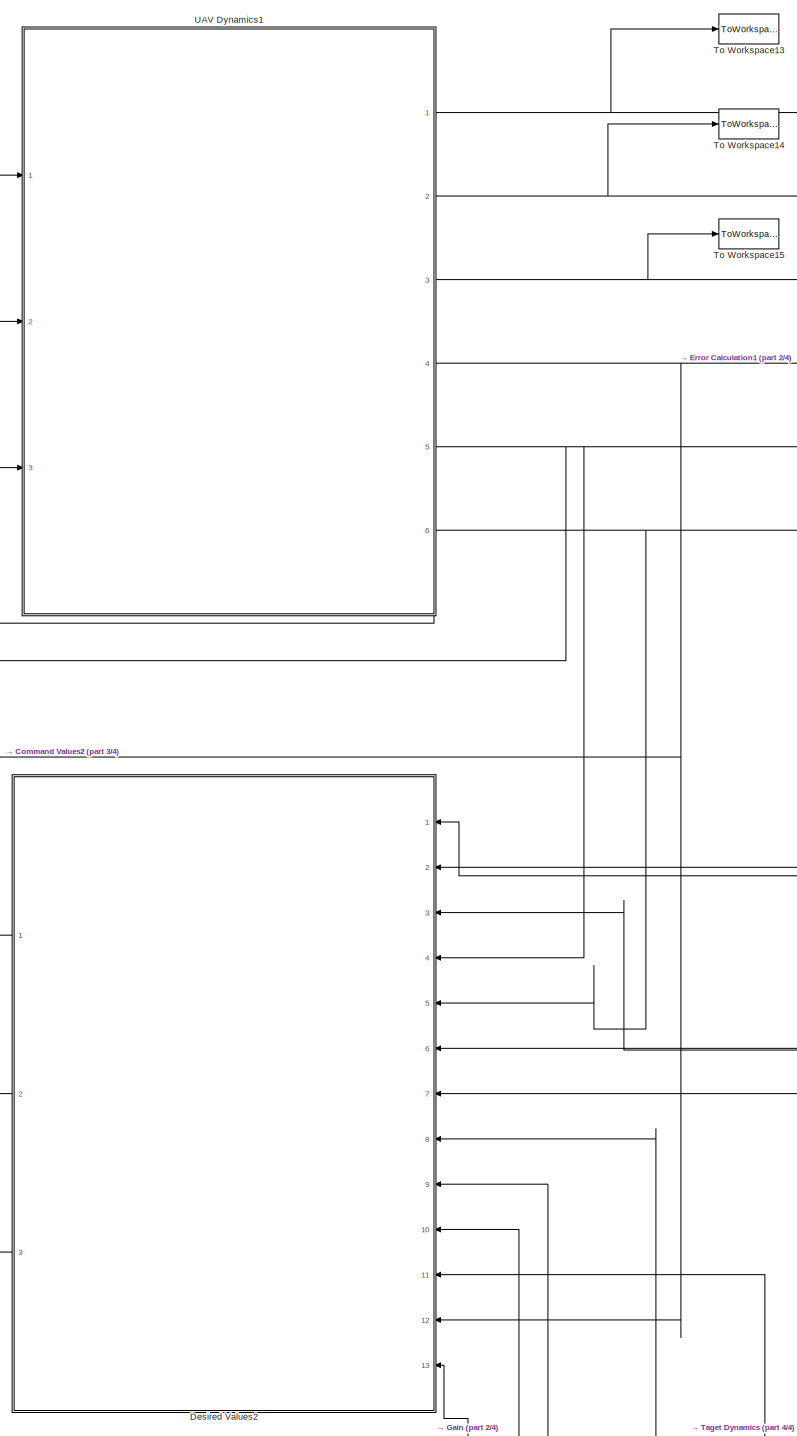
[diagram: root canvas - part 1/4, center side, full height]
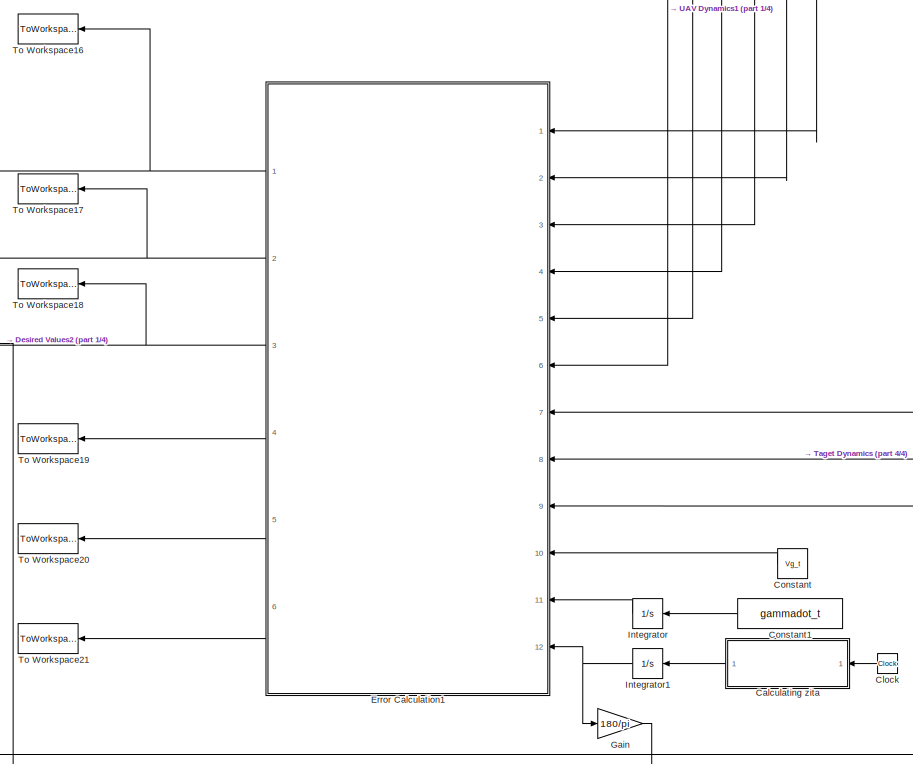
[diagram: root canvas - part 2/4, central region]
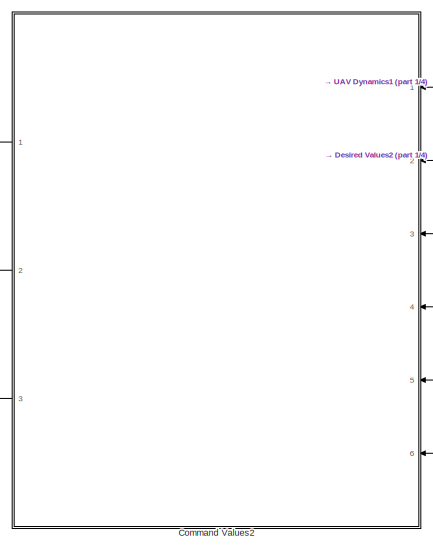
[diagram: root canvas - part 3/4, bottom left region]
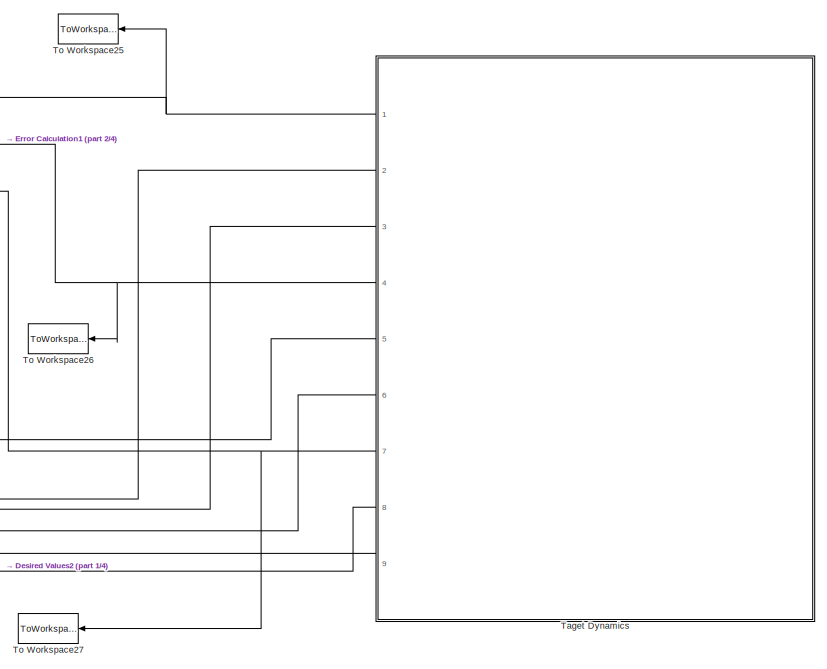
[diagram: root canvas - part 4/4, bottom right region]
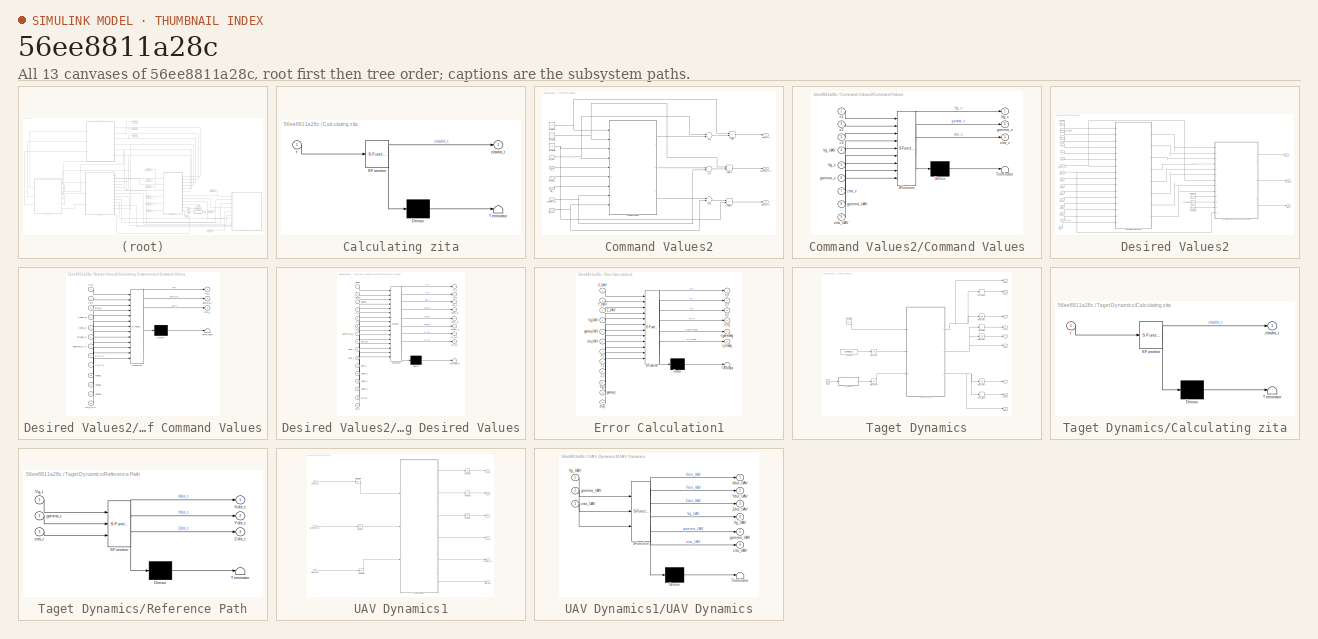
[diagram: thumbnail index - all 13 canvases of the model, root first then tree order]
MODEL slx_56ee8811a28c
KIND model
CONFIG AbsTol = auto
CONFIG EnableMultiTasking = off
CONFIG FixedStep = 0.0001
CONFIG InitFcn = Initial_Data_Case_3
CONFIG MaxStep = auto
CONFIG MinStep = auto
CONFIG RelTol = 1e-3
CONFIG SampleTimeConstraint = Unconstrained
CONFIG Solver = FixedStepAuto
CONFIG SolverName = FixedStepAuto
CONFIG StartTime = 0.0
CONFIG StopFcn = Plots_Case_3
CONFIG StopTime = 60
BLOCK [SubSystem] Calculating zita
  ErrorFcn = Stateflow.Translate.translate
  PermitHierarchicalResolution = ExplicitOnly
  Ports = [1, 1]
  RequestExecContextInheritance = off
  SFBlockType = MATLAB Function
  TreatAsAtomicUnit = on
BLOCK [Demux] Calculating zita/ Demux 
  Outputs = 1
  Ports = [1, 1]
BLOCK [S-Function] Calculating zita/ SFunction 
  EnableBusSupport = on
  FunctionName = sf_sfun
  PortCounts = [1 2]
  Ports = [1, 2]
  SFcnIsStateOwnerBlock = off
  SFunctionDeploymentMode = off
  Tag = Stateflow S-Function Project_Simulation_Case_3 3
BLOCK [Terminator] Calculating zita/ Terminator 
BLOCK [Inport] Calculating zita/t
  IconDisplay = Port number
BLOCK [Outport] Calculating zita/zitadot_t
  IconDisplay = Port number
BLOCK [Clock] Clock
BLOCK [SubSystem] Command Values2
  Ports = [6, 3]
  RequestExecContextInheritance = off
BLOCK [Sum] Command Values2/Add
  InputSameDT = off
  Inputs = -+
  OutDataTypeStr = Inherit: Inherit via internal rule
  Ports = [2, 1]
  SaturateOnIntegerOverflow = off
BLOCK [Sum] Command Values2/Add1
  InputSameDT = off
  Inputs = +-
  OutDataTypeStr = Inherit: Inherit via internal rule
  Ports = [2, 1]
  SaturateOnIntegerOverflow = off
BLOCK [Sum] Command Values2/Add2
  InputSameDT = off
  Inputs = +-
  OutDataTypeStr = Inherit: Inherit via internal rule
  Ports = [2, 1]
  SaturateOnIntegerOverflow = off
BLOCK [SubSystem] Command Values2/Command Values
  ErrorFcn = Stateflow.Translate.translate
  PermitHierarchicalResolution = ExplicitOnly
  Ports = [9, 3]
  RequestExecContextInheritance = off
  SFBlockType = MATLAB Function
  TreatAsAtomicUnit = on
BLOCK [Demux] Command Values2/Command Values/ Demux 
  Outputs = 1
  Ports = [1, 1]
BLOCK [S-Function] Command Values2/Command Values/ SFunction 
  EnableBusSupport = on
  FunctionName = sf_sfun
  PortCounts = [9 4]
  Ports = [9, 4]
  SFcnIsStateOwnerBlock = off
  SFunctionDeploymentMode = off
  Tag = Stateflow S-Function Project_Simulation_Case_3 5
BLOCK [Terminator] Command Values2/Command Values/ Terminator 
BLOCK [Inport] Command Values2/Command Values/Vg_UAV
  IconDisplay = Port number
  Port = 4
BLOCK [Outport] Command Values2/Command Values/Vg_c
  IconDisplay = Port number
BLOCK [Inport] Command Values2/Command Values/Vg_c 
  IconDisplay = Port number
  Port = 5
BLOCK [Inport] Command Values2/Command Values/c1
  IconDisplay = Port number
BLOCK [Inport] Command Values2/Command Values/c2
  IconDisplay = Port number
  Port = 2
BLOCK [Inport] Command Values2/Command Values/c3
  IconDisplay = Port number
  Port = 3
BLOCK [Inport] Command Values2/Command Values/gamma_UAV
  IconDisplay = Port number
  Port = 8
BLOCK [Outport] Command Values2/Command Values/gamma_c
  IconDisplay = Port number
  Port = 2
BLOCK [Inport] Command Values2/Command Values/gamma_c 
  IconDisplay = Port number
  Port = 6
BLOCK [Inport] Command Values2/Command Values/zita_UAV
  IconDisplay = Port number
  Port = 9
BLOCK [Outport] Command Values2/Command Values/zita_c
  IconDisplay = Port number
  Port = 3
BLOCK [Inport] Command Values2/Command Values/zita_c 
  IconDisplay = Port number
  Port = 7
BLOCK [Constant] Command Values2/Constant
  Value = c1
BLOCK [Constant] Command Values2/Constant1
  Value = c2
BLOCK [Constant] Command Values2/Constant2
  Value = c3
BLOCK [Product] Command Values2/Multiply
  InputSameDT = off
  OutDataTypeStr = Inherit: Inherit via internal rule
  Ports = [2, 1]
  RndMeth = Floor
  SaturateOnIntegerOverflow = off
BLOCK [Product] Command Values2/Multiply1
  InputSameDT = off
  OutDataTypeStr = Inherit: Inherit via internal rule
  Ports = [2, 1]
  RndMeth = Floor
  SaturateOnIntegerOverflow = off
BLOCK [Product] Command Values2/Multiply2
  InputSameDT = off
  OutDataTypeStr = Inherit: Inherit via internal rule
  Ports = [2, 1]
  RndMeth = Floor
  SaturateOnIntegerOverflow = off
BLOCK [Outport] Command Values2/Vdotg_UAV
  IconDisplay = Port number
BLOCK [Inport] Command Values2/Vg_UAV
  IconDisplay = Port number
BLOCK [Inport] Command Values2/Vg_c
  IconDisplay = Port number
  Port = 2
BLOCK [Inport] Command Values2/gamma_UAV
  IconDisplay = Port number
  Port = 3
BLOCK [Inport] Command Values2/gamma_c
  IconDisplay = Port number
  Port = 5
BLOCK [Outport] Command Values2/gammadot_UAV
  IconDisplay = Port number
  Port = 2
BLOCK [Inport] Command Values2/zita_UAV
  IconDisplay = Port number
  Port = 4
BLOCK [Inport] Command Values2/zita_c
  IconDisplay = Port number
  Port = 6
BLOCK [Outport] Command Values2/zitadot_UAV
  IconDisplay = Port number
  Port = 3
BLOCK [Constant] Constant
  Value = Vg_t
BLOCK [Constant] Constant1
  Value = gammadot_t
BLOCK [SubSystem] Desired Values2
  Ports = [13, 3]
  RequestExecContextInheritance = off
BLOCK [SubSystem] Desired Values2/Calculating Components of Command Values
  ErrorFcn = Stateflow.Translate.translate
  PermitHierarchicalResolution = ExplicitOnly
  Ports = [13, 3]
  RequestExecContextInheritance = off
  SFBlockType = MATLAB Function
  TreatAsAtomicUnit = on
BLOCK [Demux] Desired Values2/Calculating Components of Command Values/ Demux 
  Outputs = 1
  Ports = [1, 1]
BLOCK [S-Function] Desired Values2/Calculating Components of Command Values/ SFunction 
  EnableBusSupport = on
  FunctionName = sf_sfun
  PortCounts = [13 4]
  Ports = [13, 4]
  SFcnIsStateOwnerBlock = off
  SFunctionDeploymentMode = off
  Tag = Stateflow S-Function Project_Simulation_Case_3 6
BLOCK [Terminator] Desired Values2/Calculating Components of Command Values/ Terminator 
BLOCK [Inport] Desired Values2/Calculating Components of Command Values/V1_UAV
  IconDisplay = Port number
  Port = 8
BLOCK [Inport] Desired Values2/Calculating Components of Command Values/V1_d
  IconDisplay = Port number
BLOCK [Inport] Desired Values2/Calculating Components of Command Values/V2_UAV
  IconDisplay = Port number
  Port = 9
BLOCK [Inport] Desired Values2/Calculating Components of Command Values/V2_d
  IconDisplay = Port number
  Port = 2
BLOCK [Inport] Desired Values2/Calculating Components of Command Values/Vdot1_d
  IconDisplay = Port number
  Port = 4
BLOCK [Inport] Desired Values2/Calculating Components of Command Values/Vdot2_d
  IconDisplay = Port number
  Port = 5
BLOCK [Outport] Desired Values2/Calculating Components of Command Values/Vg_c
  IconDisplay = Port number
BLOCK [Inport] Desired Values2/Calculating Components of Command Values/gamma_UAV
  IconDisplay = Port number
  Port = 7
BLOCK [Outport] Desired Values2/Calculating Components of Command Values/gamma_c
  IconDisplay = Port number
  Port = 2
BLOCK [Inport] Desired Values2/Calculating Components of Command Values/landa1
  IconDisplay = Port number
  Port = 10
BLOCK [Inport] Desired Values2/Calculating Components of Command Values/landa2
  IconDisplay = Port number
  Port = 11
BLOCK [Inport] Desired Values2/Calculating Components of Command Values/landa3
  IconDisplay = Port number
  Port = 12
BLOCK [Inport] Desired Values2/Calculating Components of Command Values/zita_UAV
  IconDisplay = Port number
  Port = 13
BLOCK [Outport] Desired Values2/Calculating Components of Command Values/zita_c
  IconDisplay = Port number
  Port = 3
BLOCK [Inport] Desired Values2/Calculating Components of Command Values/zita_d
  IconDisplay = Port number
  Port = 3
BLOCK [Inport] Desired Values2/Calculating Components of Command Values/zitadot_d
  IconDisplay = Port number
  Port = 6
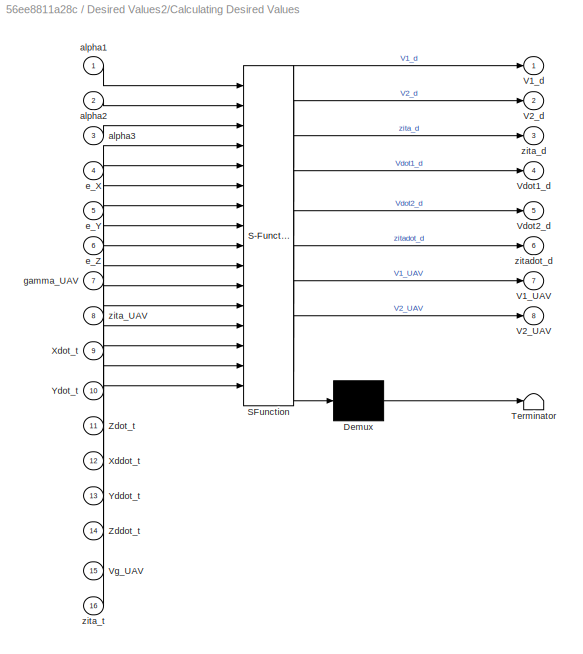
BLOCK [SubSystem] Desired Values2/Calculating Desired Values
  ErrorFcn = Stateflow.Translate.translate
  PermitHierarchicalResolution = ExplicitOnly
  Ports = [16, 8]
  RequestExecContextInheritance = off
  SFBlockType = MATLAB Function
  TreatAsAtomicUnit = on
BLOCK [Demux] Desired Values2/Calculating Desired Values/ Demux 
  Outputs = 1
  Ports = [1, 1]
BLOCK [S-Function] Desired Values2/Calculating Desired Values/ SFunction 
  EnableBusSupport = on
  FunctionName = sf_sfun
  PortCounts = [16 9]
  Ports = [16, 9]
  SFcnIsStateOwnerBlock = off
  SFunctionDeploymentMode = off
  Tag = Stateflow S-Function Project_Simulation_Case_3 7
BLOCK [Terminator] Desired Values2/Calculating Desired Values/ Terminator 
BLOCK [Outport] Desired Values2/Calculating Desired Values/V1_UAV
  IconDisplay = Port number
  Port = 7
BLOCK [Outport] Desired Values2/Calculating Desired Values/V1_d
  IconDisplay = Port number
BLOCK [Outport] Desired Values2/Calculating Desired Values/V2_UAV
  IconDisplay = Port number
  Port = 8
BLOCK [Outport] Desired Values2/Calculating Desired Values/V2_d
  IconDisplay = Port number
  Port = 2
BLOCK [Outport] Desired Values2/Calculating Desired Values/Vdot1_d
  IconDisplay = Port number
  Port = 4
BLOCK [Outport] Desired Values2/Calculating Desired Values/Vdot2_d
  IconDisplay = Port number
  Port = 5
BLOCK [Inport] Desired Values2/Calculating Desired Values/Vg_UAV
  IconDisplay = Port number
  Port = 15
BLOCK [Inport] Desired Values2/Calculating Desired Values/Xddot_t
  IconDisplay = Port number
  Port = 12
BLOCK [Inport] Desired Values2/Calculating Desired Values/Xdot_t
  IconDisplay = Port number
  Port = 9
BLOCK [Inport] Desired Values2/Calculating Desired Values/Yddot_t
  IconDisplay = Port number
  Port = 13
BLOCK [Inport] Desired Values2/Calculating Desired Values/Ydot_t
  IconDisplay = Port number
  Port = 10
BLOCK [Inport] Desired Values2/Calculating Desired Values/Zddot_t
  IconDisplay = Port number
  Port = 14
BLOCK [Inport] Desired Values2/Calculating Desired Values/Zdot_t
  IconDisplay = Port number
  Port = 11
BLOCK [Inport] Desired Values2/Calculating Desired Values/alpha1
  IconDisplay = Port number
BLOCK [Inport] Desired Values2/Calculating Desired Values/alpha2
  IconDisplay = Port number
  Port = 2
BLOCK [Inport] Desired Values2/Calculating Desired Values/alpha3
  IconDisplay = Port number
  Port = 3
BLOCK [Inport] Desired Values2/Calculating Desired Values/e_X
  IconDisplay = Port number
  Port = 4
BLOCK [Inport] Desired Values2/Calculating Desired Values/e_Y
  IconDisplay = Port number
  Port = 5
BLOCK [Inport] Desired Values2/Calculating Desired Values/e_Z
  IconDisplay = Port number
  Port = 6
BLOCK [Inport] Desired Values2/Calculating Desired Values/gamma_UAV
  IconDisplay = Port number
  Port = 7
BLOCK [Inport] Desired Values2/Calculating Desired Values/zita_UAV
  IconDisplay = Port number
  Port = 8
BLOCK [Outport] Desired Values2/Calculating Desired Values/zita_d
  IconDisplay = Port number
  Port = 3
BLOCK [Inport] Desired Values2/Calculating Desired Values/zita_t
  IconDisplay = Port number
  Port = 16
BLOCK [Outport] Desired Values2/Calculating Desired Values/zitadot_d
  IconDisplay = Port number
  Port = 6
BLOCK [Constant] Desired Values2/Constant
  Value = alpha1
BLOCK [Constant] Desired Values2/Constant1
  Value = alpha2
BLOCK [Constant] Desired Values2/Constant2
  Value = alpha3
BLOCK [Constant] Desired Values2/Constant3
  Value = landa1
BLOCK [Constant] Desired Values2/Constant4
  Value = landa2
BLOCK [Constant] Desired Values2/Constant5
  Value = landa3
BLOCK [Inport] Desired Values2/Vg_UAV
  IconDisplay = Port number
  Port = 12
BLOCK [Outport] Desired Values2/Vg_c
  IconDisplay = Port number
BLOCK [Inport] Desired Values2/Xddot_t
  IconDisplay = Port number
  Port = 9
BLOCK [Inport] Desired Values2/Xdot_t
  IconDisplay = Port number
  Port = 6
BLOCK [Inport] Desired Values2/Yddot_t
  IconDisplay = Port number
  Port = 10
BLOCK [Inport] Desired Values2/Ydot_t
  IconDisplay = Port number
  Port = 7
BLOCK [Inport] Desired Values2/Zddot_t
  IconDisplay = Port number
  Port = 11
BLOCK [Inport] Desired Values2/Zdot_t
  IconDisplay = Port number
  Port = 8
BLOCK [Inport] Desired Values2/e_X
  IconDisplay = Port number
BLOCK [Inport] Desired Values2/e_Y
  IconDisplay = Port number
  Port = 2
BLOCK [Inport] Desired Values2/e_Z
  IconDisplay = Port number
  Port = 3
BLOCK [Inport] Desired Values2/gamma_UAV
  IconDisplay = Port number
  Port = 4
BLOCK [Outport] Desired Values2/gamma_c
  IconDisplay = Port number
  Port = 2
BLOCK [Inport] Desired Values2/zita_UAV
  IconDisplay = Port number
  Port = 5
BLOCK [Outport] Desired Values2/zita_c
  IconDisplay = Port number
  Port = 3
BLOCK [Inport] Desired Values2/zita_t
  IconDisplay = Port number
  Port = 13
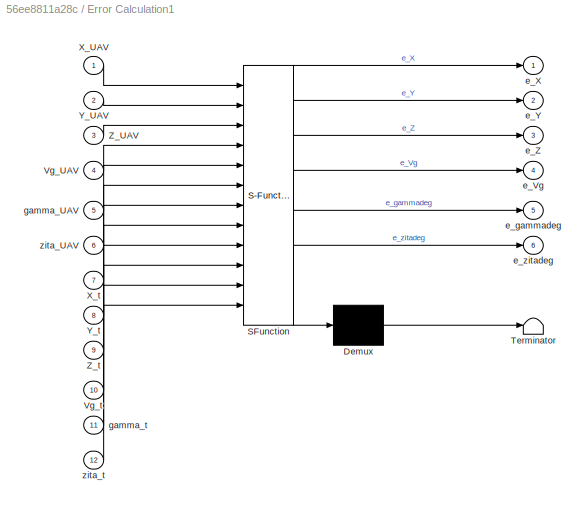
BLOCK [SubSystem] Error Calculation1
  ErrorFcn = Stateflow.Translate.translate
  PermitHierarchicalResolution = ExplicitOnly
  Ports = [12, 6]
  RequestExecContextInheritance = off
  SFBlockType = MATLAB Function
  TreatAsAtomicUnit = on
BLOCK [Demux] Error Calculation1/ Demux 
  Outputs = 1
  Ports = [1, 1]
BLOCK [S-Function] Error Calculation1/ SFunction 
  EnableBusSupport = on
  FunctionName = sf_sfun
  PortCounts = [12 7]
  Ports = [12, 7]
  SFcnIsStateOwnerBlock = off
  SFunctionDeploymentMode = off
  Tag = Stateflow S-Function Project_Simulation_Case_3 13
BLOCK [Terminator] Error Calculation1/ Terminator 
BLOCK [Inport] Error Calculation1/Vg_UAV
  IconDisplay = Port number
  Port = 4
BLOCK [Inport] Error Calculation1/Vg_t
  IconDisplay = Port number
  Port = 10
BLOCK [Inport] Error Calculation1/X_UAV
  IconDisplay = Port number
BLOCK [Inport] Error Calculation1/X_t
  IconDisplay = Port number
  Port = 7
BLOCK [Inport] Error Calculation1/Y_UAV
  IconDisplay = Port number
  Port = 2
BLOCK [Inport] Error Calculation1/Y_t
  IconDisplay = Port number
  Port = 8
BLOCK [Inport] Error Calculation1/Z_UAV
  IconDisplay = Port number
  Port = 3
BLOCK [Inport] Error Calculation1/Z_t
  IconDisplay = Port number
  Port = 9
BLOCK [Outport] Error Calculation1/e_Vg
  IconDisplay = Port number
  Port = 4
BLOCK [Outport] Error Calculation1/e_X
  IconDisplay = Port number
BLOCK [Outport] Error Calculation1/e_Y
  IconDisplay = Port number
  Port = 2
BLOCK [Outport] Error Calculation1/e_Z
  IconDisplay = Port number
  Port = 3
BLOCK [Outport] Error Calculation1/e_gammadeg
  IconDisplay = Port number
  Port = 5
BLOCK [Outport] Error Calculation1/e_zitadeg
  IconDisplay = Port number
  Port = 6
BLOCK [Inport] Error Calculation1/gamma_UAV
  IconDisplay = Port number
  Port = 5
BLOCK [Inport] Error Calculation1/gamma_t
  IconDisplay = Port number
  Port = 11
BLOCK [Inport] Error Calculation1/zita_UAV
  IconDisplay = Port number
  Port = 6
BLOCK [Inport] Error Calculation1/zita_t
  IconDisplay = Port number
  Port = 12
BLOCK [Gain] Gain
  Gain = 180/pi
  OutDataTypeStr = Inherit: Inherit via internal rule
  ParamDataTypeStr = Inherit: Inherit via internal rule
  SaturateOnIntegerOverflow = off
BLOCK [Integrator] Integrator
  InitialCondition = 45*pi/180
  Ports = [1, 1]
BLOCK [Integrator] Integrator1
  InitialCondition = 0*pi/180
  Ports = [1, 1]
BLOCK [SubSystem] Taget Dynamics
  Ports = [0, 9]
  RequestExecContextInheritance = off
BLOCK [SubSystem] Taget Dynamics/Calculating zita
  ErrorFcn = Stateflow.Translate.translate
  PermitHierarchicalResolution = ExplicitOnly
  Ports = [1, 1]
  RequestExecContextInheritance = off
  SFBlockType = MATLAB Function
  TreatAsAtomicUnit = on
BLOCK [Demux] Taget Dynamics/Calculating zita/ Demux 
  Outputs = 1
  Ports = [1, 1]
BLOCK [S-Function] Taget Dynamics/Calculating zita/ SFunction 
  EnableBusSupport = on
  FunctionName = sf_sfun
  PortCounts = [1 2]
  Ports = [1, 2]
  SFcnIsStateOwnerBlock = off
  SFunctionDeploymentMode = off
  Tag = Stateflow S-Function Project_Simulation_Case_3 2
BLOCK [Terminator] Taget Dynamics/Calculating zita/ Terminator 
BLOCK [Inport] Taget Dynamics/Calculating zita/t
  IconDisplay = Port number
BLOCK [Outport] Taget Dynamics/Calculating zita/zitadot_t
  IconDisplay = Port number
BLOCK [Clock] Taget Dynamics/Clock
BLOCK [Constant] Taget Dynamics/Constant
  Value = Vg_t
BLOCK [Constant] Taget Dynamics/Constant1
  Value = gammadot_t
BLOCK [Derivative] Taget Dynamics/Derivative
BLOCK [Derivative] Taget Dynamics/Derivative1
BLOCK [Derivative] Taget Dynamics/Derivative2
BLOCK [Integrator] Taget Dynamics/Integrator
  InitialCondition = 45*pi/180
  Ports = [1, 1]
BLOCK [Integrator] Taget Dynamics/Integrator1
  InitialCondition = 100
  Ports = [1, 1]
BLOCK [Integrator] Taget Dynamics/Integrator2
  InitialCondition = 100
  Ports = [1, 1]
BLOCK [Integrator] Taget Dynamics/Integrator3
  InitialCondition = 100
  Ports = [1, 1]
BLOCK [Integrator] Taget Dynamics/Integrator4
  InitialCondition = 0*pi/180
  Ports = [1, 1]
BLOCK [SubSystem] Taget Dynamics/Reference Path
  ErrorFcn = Stateflow.Translate.translate
  PermitHierarchicalResolution = ExplicitOnly
  Ports = [3, 3]
  RequestExecContextInheritance = off
  SFBlockType = MATLAB Function
  TreatAsAtomicUnit = on
BLOCK [Demux] Taget Dynamics/Reference Path/ Demux 
  Outputs = 1
  Ports = [1, 1]
BLOCK [S-Function] Taget Dynamics/Reference Path/ SFunction 
  EnableBusSupport = on
  FunctionName = sf_sfun
  PortCounts = [3 4]
  Ports = [3, 4]
  SFcnIsStateOwnerBlock = off
  SFunctionDeploymentMode = off
  Tag = Stateflow S-Function Project_Simulation_Case_3 14
BLOCK [Terminator] Taget Dynamics/Reference Path/ Terminator 
BLOCK [Inport] Taget Dynamics/Reference Path/Vg_t
  IconDisplay = Port number
BLOCK [Outport] Taget Dynamics/Reference Path/Xdot_t
  IconDisplay = Port number
BLOCK [Outport] Taget Dynamics/Reference Path/Ydot_t
  IconDisplay = Port number
  Port = 2
BLOCK [Outport] Taget Dynamics/Reference Path/Zdot_t
  IconDisplay = Port number
  Port = 3
BLOCK [Inport] Taget Dynamics/Reference Path/gamma_t
  IconDisplay = Port number
  Port = 2
BLOCK [Inport] Taget Dynamics/Reference Path/zita_t
  IconDisplay = Port number
  Port = 3
BLOCK [Outport] Taget Dynamics/X_t
  IconDisplay = Port number
BLOCK [Outport] Taget Dynamics/Xddot_t
  IconDisplay = Port number
  Port = 2
BLOCK [Outport] Taget Dynamics/Xdot_t
  IconDisplay = Port number
  Port = 3
BLOCK [Outport] Taget Dynamics/Y_t
  IconDisplay = Port number
  Port = 4
BLOCK [Outport] Taget Dynamics/Yddot_t
  IconDisplay = Port number
  Port = 5
BLOCK [Outport] Taget Dynamics/Ydot_t
  IconDisplay = Port number
  Port = 6
BLOCK [Outport] Taget Dynamics/Z_t
  IconDisplay = Port number
  Port = 7
BLOCK [Outport] Taget Dynamics/Zddot_t
  IconDisplay = Port number
  Port = 8
BLOCK [Outport] Taget Dynamics/Zdot_t
  IconDisplay = Port number
  Port = 9
BLOCK [ToWorkspace] To Workspace13
  FixptAsFi = on
  MaxDataPoints = inf
  Ports = [1]
  SampleTime = -1
  Save2DSignal = 3-D array (concatenate along third dimension)
  SaveFormat = Timeseries
  VariableName = X_UAV
BLOCK [ToWorkspace] To Workspace14
  FixptAsFi = on
  MaxDataPoints = inf
  Ports = [1]
  SampleTime = -1
  Save2DSignal = 3-D array (concatenate along third dimension)
  SaveFormat = Timeseries
  VariableName = Y_UAV
BLOCK [ToWorkspace] To Workspace15
  FixptAsFi = on
  MaxDataPoints = inf
  Ports = [1]
  SampleTime = -1
  Save2DSignal = 3-D array (concatenate along third dimension)
  SaveFormat = Timeseries
  VariableName = Z_UAV
BLOCK [ToWorkspace] To Workspace16
  FixptAsFi = on
  MaxDataPoints = inf
  Ports = [1]
  SampleTime = -1
  Save2DSignal = 3-D array (concatenate along third dimension)
  SaveFormat = Timeseries
  VariableName = e_X
BLOCK [ToWorkspace] To Workspace17
  FixptAsFi = on
  MaxDataPoints = inf
  Ports = [1]
  SampleTime = -1
  Save2DSignal = 3-D array (concatenate along third dimension)
  SaveFormat = Timeseries
  VariableName = e_Y
BLOCK [ToWorkspace] To Workspace18
  FixptAsFi = on
  MaxDataPoints = inf
  Ports = [1]
  SampleTime = -1
  Save2DSignal = 3-D array (concatenate along third dimension)
  SaveFormat = Timeseries
  VariableName = e_Z
BLOCK [ToWorkspace] To Workspace19
  FixptAsFi = on
  MaxDataPoints = inf
  Ports = [1]
  SampleTime = -1
  Save2DSignal = 3-D array (concatenate along third dimension)
  SaveFormat = Timeseries
  VariableName = e_Vg
BLOCK [ToWorkspace] To Workspace20
  FixptAsFi = on
  MaxDataPoints = inf
  Ports = [1]
  SampleTime = -1
  Save2DSignal = 3-D array (concatenate along third dimension)
  SaveFormat = Timeseries
  VariableName = e_gammadeg
BLOCK [ToWorkspace] To Workspace21
  FixptAsFi = on
  MaxDataPoints = inf
  Ports = [1]
  SampleTime = -1
  Save2DSignal = 3-D array (concatenate along third dimension)
  SaveFormat = Timeseries
  VariableName = e_zitadeg
BLOCK [ToWorkspace] To Workspace25
  FixptAsFi = on
  MaxDataPoints = inf
  Ports = [1]
  SampleTime = -1
  Save2DSignal = 3-D array (concatenate along third dimension)
  SaveFormat = Timeseries
  VariableName = X_t
BLOCK [ToWorkspace] To Workspace26
  FixptAsFi = on
  MaxDataPoints = inf
  Ports = [1]
  SampleTime = -1
  Save2DSignal = 3-D array (concatenate along third dimension)
  SaveFormat = Timeseries
  VariableName = Y_t
BLOCK [ToWorkspace] To Workspace27
  FixptAsFi = on
  MaxDataPoints = inf
  Ports = [1]
  SampleTime = -1
  Save2DSignal = 3-D array (concatenate along third dimension)
  SaveFormat = Timeseries
  VariableName = Z_t
BLOCK [SubSystem] UAV Dynamics1
  Ports = [3, 6]
  RequestExecContextInheritance = off
BLOCK [Integrator] UAV Dynamics1/Integrator1
  InitialCondition = 80
  Ports = [1, 1]
BLOCK [Integrator] UAV Dynamics1/Integrator2
  InitialCondition = 90
  Ports = [1, 1]
BLOCK [Integrator] UAV Dynamics1/Integrator3
  InitialCondition = 70
  Ports = [1, 1]
BLOCK [Integrator] UAV Dynamics1/Integrator6
  InitialCondition = 8
  Ports = [1, 1]
BLOCK [Integrator] UAV Dynamics1/Integrator7
  InitialCondition = 0*pi/180
  Ports = [1, 1]
BLOCK [Integrator] UAV Dynamics1/Integrator8
  InitialCondition = 0*pi/180
  Ports = [1, 1]
BLOCK [SubSystem] UAV Dynamics1/UAV Dynamics
  ErrorFcn = Stateflow.Translate.translate
  PermitHierarchicalResolution = ExplicitOnly
  Ports = [3, 6]
  RequestExecContextInheritance = off
  SFBlockType = MATLAB Function
  TreatAsAtomicUnit = on
BLOCK [Demux] UAV Dynamics1/UAV Dynamics/ Demux 
  Outputs = 1
  Ports = [1, 1]
BLOCK [S-Function] UAV Dynamics1/UAV Dynamics/ SFunction 
  EnableBusSupport = on
  FunctionName = sf_sfun
  PortCounts = [3 7]
  Ports = [3, 7]
  SFcnIsStateOwnerBlock = off
  SFunctionDeploymentMode = off
  Tag = Stateflow S-Function Project_Simulation_Case_3 15
BLOCK [Terminator] UAV Dynamics1/UAV Dynamics/ Terminator 
BLOCK [Outport] UAV Dynamics1/UAV Dynamics/Vg_UAV
  IconDisplay = Port number
  Port = 4
BLOCK [Inport] UAV Dynamics1/UAV Dynamics/Vg_UAV 
  IconDisplay = Port number
BLOCK [Outport] UAV Dynamics1/UAV Dynamics/Xdot_UAV
  IconDisplay = Port number
BLOCK [Outport] UAV Dynamics1/UAV Dynamics/Ydot_UAV
  IconDisplay = Port number
  Port = 2
BLOCK [Outport] UAV Dynamics1/UAV Dynamics/Zdot_UAV
  IconDisplay = Port number
  Port = 3
BLOCK [Outport] UAV Dynamics1/UAV Dynamics/gamma_UAV
  IconDisplay = Port number
  Port = 5
BLOCK [Inport] UAV Dynamics1/UAV Dynamics/gamma_UAV 
  IconDisplay = Port number
  Port = 2
BLOCK [Outport] UAV Dynamics1/UAV Dynamics/zita_UAV
  IconDisplay = Port number
  Port = 6
BLOCK [Inport] UAV Dynamics1/UAV Dynamics/zita_UAV 
  IconDisplay = Port number
  Port = 3
BLOCK [Inport] UAV Dynamics1/Vdotg_UAV
  IconDisplay = Port number
BLOCK [Outport] UAV Dynamics1/Vg_UAV
  IconDisplay = Port number
  Port = 4
BLOCK [Outport] UAV Dynamics1/X_UAV
  IconDisplay = Port number
BLOCK [Outport] UAV Dynamics1/Y_UAV
  IconDisplay = Port number
  Port = 2
BLOCK [Outport] UAV Dynamics1/Z_UAV
  IconDisplay = Port number
  Port = 3
BLOCK [Outport] UAV Dynamics1/gamma_UAV
  IconDisplay = Port number
  Port = 5
BLOCK [Inport] UAV Dynamics1/gammadot_UAV
  IconDisplay = Port number
  Port = 2
BLOCK [Outport] UAV Dynamics1/zita_UAV
  IconDisplay = Port number
  Port = 6
BLOCK [Inport] UAV Dynamics1/zitadot_UAV
  IconDisplay = Port number
  Port = 3
LINE Calculating zita:1 -> Integrator1:1
LINE Clock:1 -> Calculating zita:1
LINE Command Values2/Add1:1 -> Command Values2/Multiply1:2
LINE Command Values2/Add2:1 -> Command Values2/Multiply2:1
LINE Command Values2/Add:1 -> Command Values2/Multiply:2
LINE Command Values2/Command Values:1 -> Command Values2/Add:2
LINE Command Values2/Command Values:2 -> Command Values2/Add1:1
LINE Command Values2/Command Values:3 -> Command Values2/Add2:1
NET Command Values2/Constant1:1 -> Command Values2/Command Values:2, Command Values2/Multiply1:1
NET Command Values2/Constant2:1 -> Command Values2/Command Values:3, Command Values2/Multiply2:2
NET Command Values2/Constant:1 -> Command Values2/Command Values:1, Command Values2/Multiply:1
LINE Command Values2/Multiply1:1 -> Command Values2/gammadot_UAV:1
LINE Command Values2/Multiply2:1 -> Command Values2/zitadot_UAV:1
LINE Command Values2/Multiply:1 -> Command Values2/Vdotg_UAV:1
NET Command Values2/Vg_UAV:1 -> Command Values2/Add:1, Command Values2/Command Values:4
LINE Command Values2/Vg_c:1 -> Command Values2/Command Values:5
NET Command Values2/gamma_UAV:1 -> Command Values2/Add1:2, Command Values2/Command Values:8
LINE Command Values2/gamma_c:1 -> Command Values2/Command Values:6
NET Command Values2/zita_UAV:1 -> Command Values2/Add2:2, Command Values2/Command Values:9
LINE Command Values2/zita_c:1 -> Command Values2/Command Values:7
LINE Command Values2:1 -> UAV Dynamics1:1
LINE Command Values2:2 -> UAV Dynamics1:2
LINE Command Values2:3 -> UAV Dynamics1:3
LINE Constant1:1 -> Integrator:1
LINE Constant:1 -> Error Calculation1:10
LINE Desired Values2/Calculating Components of Command Values:1 -> Desired Values2/Vg_c:1
LINE Desired Values2/Calculating Components of Command Values:2 -> Desired Values2/gamma_c:1
LINE Desired Values2/Calculating Components of Command Values:3 -> Desired Values2/zita_c:1
LINE Desired Values2/Calculating Desired Values:1 -> Desired Values2/Calculating Components of Command Values:1
LINE Desired Values2/Calculating Desired Values:2 -> Desired Values2/Calculating Components of Command Values:2
LINE Desired Values2/Calculating Desired Values:3 -> Desired Values2/Calculating Components of Command Values:3
LINE Desired Values2/Calculating Desired Values:4 -> Desired Values2/Calculating Components of Command Values:4
LINE Desired Values2/Calculating Desired Values:5 -> Desired Values2/Calculating Components of Command Values:5
LINE Desired Values2/Calculating Desired Values:6 -> Desired Values2/Calculating Components of Command Values:6
LINE Desired Values2/Calculating Desired Values:7 -> Desired Values2/Calculating Components of Command Values:8
LINE Desired Values2/Calculating Desired Values:8 -> Desired Values2/Calculating Components of Command Values:9
LINE Desired Values2/Constant1:1 -> Desired Values2/Calculating Desired Values:2
LINE Desired Values2/Constant2:1 -> Desired Values2/Calculating Desired Values:3
LINE Desired Values2/Constant3:1 -> Desired Values2/Calculating Components of Command Values:10
LINE Desired Values2/Constant4:1 -> Desired Values2/Calculating Components of Command Values:11
LINE Desired Values2/Constant5:1 -> Desired Values2/Calculating Components of Command Values:12
LINE Desired Values2/Constant:1 -> Desired Values2/Calculating Desired Values:1
LINE Desired Values2/Vg_UAV:1 -> Desired Values2/Calculating Desired Values:15
LINE Desired Values2/Xddot_t:1 -> Desired Values2/Calculating Desired Values:12
LINE Desired Values2/Xdot_t:1 -> Desired Values2/Calculating Desired Values:9
LINE Desired Values2/Yddot_t:1 -> Desired Values2/Calculating Desired Values:13
LINE Desired Values2/Ydot_t:1 -> Desired Values2/Calculating Desired Values:10
LINE Desired Values2/Zddot_t:1 -> Desired Values2/Calculating Desired Values:14
LINE Desired Values2/Zdot_t:1 -> Desired Values2/Calculating Desired Values:11
LINE Desired Values2/e_X:1 -> Desired Values2/Calculating Desired Values:4
LINE Desired Values2/e_Y:1 -> Desired Values2/Calculating Desired Values:5
LINE Desired Values2/e_Z:1 -> Desired Values2/Calculating Desired Values:6
NET Desired Values2/gamma_UAV:1 -> Desired Values2/Calculating Components of Command Values:7, Desired Values2/Calculating Desired Values:7
NET Desired Values2/zita_UAV:1 -> Desired Values2/Calculating Components of Command Values:13, Desired Values2/Calculating Desired Values:8
LINE Desired Values2/zita_t:1 -> Desired Values2/Calculating Desired Values:16
LINE Desired Values2:1 -> Command Values2:2
LINE Desired Values2:2 -> Command Values2:5
LINE Desired Values2:3 -> Command Values2:6
NET Error Calculation1:1 -> Desired Values2:1, To Workspace16:1
NET Error Calculation1:2 -> Desired Values2:2, To Workspace17:1
NET Error Calculation1:3 -> Desired Values2:3, To Workspace18:1
LINE Error Calculation1:4 -> To Workspace19:1
LINE Error Calculation1:5 -> To Workspace20:1
LINE Error Calculation1:6 -> To Workspace21:1
LINE Gain:1 -> Desired Values2:13
NET Integrator1:1 -> Error Calculation1:12, Gain:1
LINE Integrator:1 -> Error Calculation1:11
LINE Taget Dynamics/Calculating zita:1 -> Taget Dynamics/Integrator4:1
LINE Taget Dynamics/Clock:1 -> Taget Dynamics/Calculating zita:1
LINE Taget Dynamics/Constant1:1 -> Taget Dynamics/Integrator:1
LINE Taget Dynamics/Constant:1 -> Taget Dynamics/Reference Path:1
LINE Taget Dynamics/Derivative1:1 -> Taget Dynamics/Xddot_t:1
LINE Taget Dynamics/Derivative2:1 -> Taget Dynamics/Zddot_t:1
LINE Taget Dynamics/Derivative:1 -> Taget Dynamics/Yddot_t:1
LINE Taget Dynamics/Integrator1:1 -> Taget Dynamics/X_t:1
LINE Taget Dynamics/Integrator2:1 -> Taget Dynamics/Y_t:1
LINE Taget Dynamics/Integrator3:1 -> Taget Dynamics/Z_t:1
LINE Taget Dynamics/Integrator4:1 -> Taget Dynamics/Reference Path:3
LINE Taget Dynamics/Integrator:1 -> Taget Dynamics/Reference Path:2
NET Taget Dynamics/Reference Path:1 -> Taget Dynamics/Derivative1:1, Taget Dynamics/Integrator1:1, Taget Dynamics/Xdot_t:1
NET Taget Dynamics/Reference Path:2 -> Taget Dynamics/Derivative:1, Taget Dynamics/Integrator2:1, Taget Dynamics/Ydot_t:1
NET Taget Dynamics/Reference Path:3 -> Taget Dynamics/Derivative2:1, Taget Dynamics/Integrator3:1, Taget Dynamics/Zdot_t:1
NET Taget Dynamics:1 -> Error Calculation1:7, To Workspace25:1
LINE Taget Dynamics:2 -> Desired Values2:9
LINE Taget Dynamics:3 -> Desired Values2:6
NET Taget Dynamics:4 -> Error Calculation1:8, To Workspace26:1
LINE Taget Dynamics:5 -> Desired Values2:10
LINE Taget Dynamics:6 -> Desired Values2:7
NET Taget Dynamics:7 -> Error Calculation1:9, To Workspace27:1
LINE Taget Dynamics:8 -> Desired Values2:11
LINE Taget Dynamics:9 -> Desired Values2:8
LINE UAV Dynamics1/Integrator1:1 -> UAV Dynamics1/X_UAV:1
LINE UAV Dynamics1/Integrator2:1 -> UAV Dynamics1/Y_UAV:1
LINE UAV Dynamics1/Integrator3:1 -> UAV Dynamics1/Z_UAV:1
LINE UAV Dynamics1/Integrator6:1 -> UAV Dynamics1/UAV Dynamics:1
LINE UAV Dynamics1/Integrator7:1 -> UAV Dynamics1/UAV Dynamics:2
LINE UAV Dynamics1/Integrator8:1 -> UAV Dynamics1/UAV Dynamics:3
LINE UAV Dynamics1/UAV Dynamics:1 -> UAV Dynamics1/Integrator1:1
LINE UAV Dynamics1/UAV Dynamics:2 -> UAV Dynamics1/Integrator2:1
LINE UAV Dynamics1/UAV Dynamics:3 -> UAV Dynamics1/Integrator3:1
LINE UAV Dynamics1/UAV Dynamics:4 -> UAV Dynamics1/Vg_UAV:1
LINE UAV Dynamics1/UAV Dynamics:5 -> UAV Dynamics1/gamma_UAV:1
LINE UAV Dynamics1/UAV Dynamics:6 -> UAV Dynamics1/zita_UAV:1
LINE UAV Dynamics1/Vdotg_UAV:1 -> UAV Dynamics1/Integrator6:1
LINE UAV Dynamics1/gammadot_UAV:1 -> UAV Dynamics1/Integrator7:1
LINE UAV Dynamics1/zitadot_UAV:1 -> UAV Dynamics1/Integrator8:1
NET UAV Dynamics1:1 -> Error Calculation1:1, To Workspace13:1
NET UAV Dynamics1:2 -> Error Calculation1:2, To Workspace14:1
NET UAV Dynamics1:3 -> Error Calculation1:3, To Workspace15:1
NET UAV Dynamics1:4 -> Command Values2:1, Desired Values2:12, Error Calculation1:4
NET UAV Dynamics1:5 -> Command Values2:3, Desired Values2:4, Error Calculation1:5
NET UAV Dynamics1:6 -> Command Values2:4, Desired Values2:5, Error Calculation1:6
note: NET lines group one-source signal fan-out (src -> all destinations, sorted); 1:1 wires keep LINE
CHART Taget Dynamics/Calculating zita states=1 transitions=1
  STATE_LABEL 'eML_blk_kernel()'
  STATE_LABEL 'SCRIPT:\nfunction zitadot_t = fcn(t)\n\nzitadot_t = sin((2*pi/30)*t);\n'
CHART Calculating zita states=1 transitions=1
  STATE_LABEL 'eML_blk_kernel()'
  STATE_LABEL 'SCRIPT:\nfunction zitadot_t = fcn(t)\n\nzitadot_t = sin((2*pi/30)*t);\n'
CHART Command Values2/Command Values states=1 transitions=1
  STATE_LABEL 'eML_blk_kernel()'
  STATE_LABEL 'SCRIPT:\nfunction [Vg_c,gamma_c,zita_c] = fcn(c1,c2,c3,Vg_UAV,Vg_c,gamma_c,zita_c,gamma_UAV,zita_UAV)\n\nVg_c = Vg_UAV - (1/c1)*(Vg_c);\ngamma_c = gamma_UAV - (1/(c2*Vg_UAV))*(gamma_c);\nzita_c = zita_UAV - (1/c3)*zita_c;'
CHART Desired Values2/Calculating Components of Command Values states=1 transitions=1
  STATE_LABEL 'eML_blk_kernel()'
  STATE_LABEL 'SCRIPT:\nfunction [Vg_c,gamma_c,zita_c] = fcn(V1_d,V2_d,zita_d,Vdot1_d,Vdot2_d,zitadot_d,gamma_UAV, V1_UAV,V2_UAV,landa1,landa2,landa3,zita_UAV)\n\nVg_c1 = -Vdot1_d + landa1*(V1_UAV - V1_d);\nVg_c2 = -Vdot2_d + landa2*(V2_UAV - V2_d);\nVg_c = Vg_c1*cos(gamma_UAV) + Vg_c2*sin(gamma_UAV);\ngamma_c1 = -Vdot1_d + landa1*(V1_UAV - V1_d);\ngamma_c2 = -Vdot2_d + landa2*(V2_UAV - V2_d);\ngamma_c = -sin(gamma_UAV)...<+86ch>'
CHART Desired Values2/Calculating Desired Values states=1 transitions=1
  STATE_LABEL 'eML_blk_kernel()'
  STATE_LABEL 'SCRIPT:\nfunction [V1_d,V2_d,zita_d,Vdot1_d,Vdot2_d,zitadot_d,V1_UAV,V2_UAV] = fcn(alpha1,alpha2,alpha3,e_X,e_Y,e_Z,gamma_UAV,zita_UAV,Xdot_t,Ydot_t,Zdot_t,Xddot_t,Yddot_t,Zddot_t,Vg_UAV,zita_t)\n\nV1_UAV = Vg_UAV*cos(gamma_UAV);\nV2_UAV = Vg_UAV*sin(gamma_UAV);\nV1_d = sqrt((-alpha1*e_X + Xdot_t)^2 + (-alpha2*e_Y + Ydot_t)^2);\nV2_d = -alpha3*e_Z + Zdot_t;\ny = (-alpha2*e_Y + Ydot_t);\nx = (-alpha1*e_X +...<+687ch>'
CHART Error Calculation1 states=1 transitions=1
  STATE_LABEL 'eML_blk_kernel()'
  STATE_LABEL 'SCRIPT:\nfunction [e_X,e_Y,e_Z,e_Vg,e_gammadeg,e_zitadeg] = fcn(X_UAV,Y_UAV,Z_UAV,Vg_UAV,gamma_UAV,zita_UAV,X_t,Y_t,Z_t,Vg_t,gamma_t,zita_t)\n\ne_X = X_UAV - X_t;\ne_Y = Y_UAV - Y_t;\ne_Z = Z_UAV - Z_t;\ne_Vg = Vg_UAV - Vg_t;\ne_gamma = gamma_UAV - gamma_t;\ne_zita = zita_UAV - zita_t;\ne_gammadeg = e_gamma*(180/pi);\ne_zitadeg = e_zita*(180/pi);\n'
CHART Taget Dynamics/Reference Path states=1 transitions=1
  STATE_LABEL 'eML_blk_kernel()'
  STATE_LABEL 'SCRIPT:\nfunction [Xdot_t,Ydot_t,Zdot_t]  = fcn(Vg_t,gamma_t,zita_t)\n\nXdot_t = Vg_t*cos(gamma_t)*cos(zita_t);\nYdot_t = Vg_t*cos(gamma_t)*sin(zita_t);\nZdot_t = Vg_t*sin(gamma_t);'
CHART UAV Dynamics1/UAV Dynamics states=1 transitions=1
  STATE_LABEL 'eML_blk_kernel()'
  STATE_LABEL 'SCRIPT:\nfunction [Xdot_UAV,Ydot_UAV,Zdot_UAV,Vg_UAV,gamma_UAV,zita_UAV]  = fcn(Vg_UAV,gamma_UAV,zita_UAV)\n\nXdot_UAV = Vg_UAV*cos(gamma_UAV)*cos(zita_UAV);\nYdot_UAV = Vg_UAV*cos(gamma_UAV)*sin(zita_UAV);\nZdot_UAV = Vg_UAV*sin(gamma_UAV);\n'
